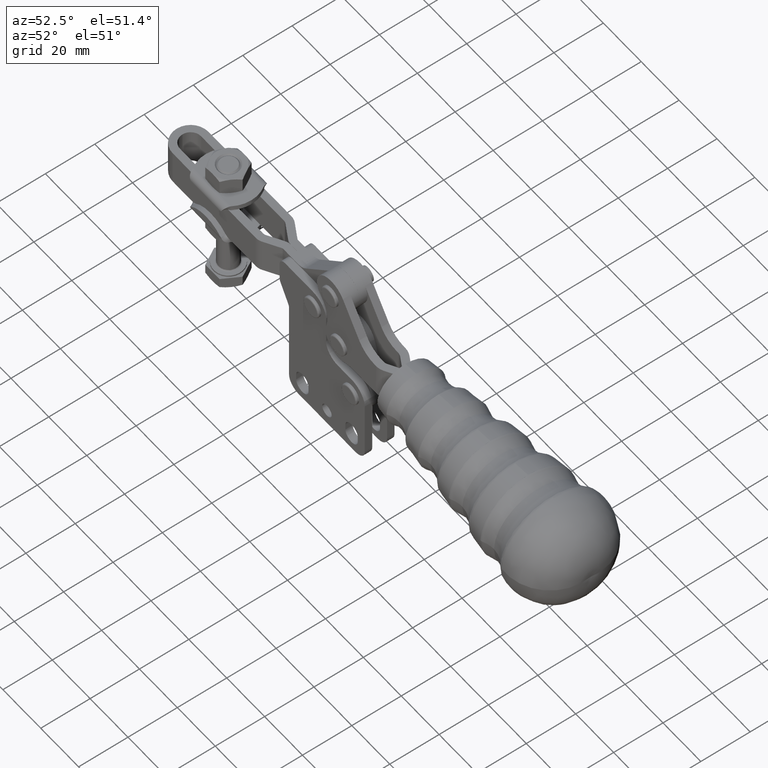
[diagram: clean part render]
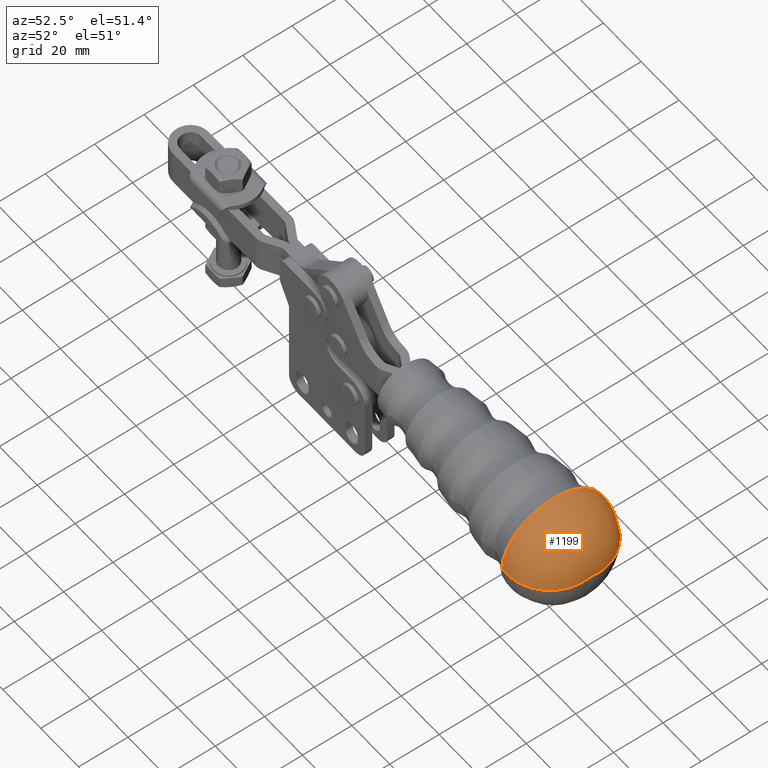
[diagram: same view with one face highlighted and labeled with its STEP entity id]
A machine part, auxiliary view. The second image highlights one B-rep face of the part: STEP entity #1199.
In plain terms, the highlighted face is a freeform B-spline surface patch.
Its self-contained STEP definition (entity closure, byte-faithful):
#1081=CARTESIAN_POINT('',(190.240720129043380,-87.116760936861027,-0.517462376750276));
#1082=VERTEX_POINT('',#1081);
#1090=CARTESIAN_POINT('',(190.481536453091730,-66.289459766818950,20.308446523600459));
#1091=VERTEX_POINT('',#1090);
#1092=CARTESIAN_POINT('',(190.240720129043380,-66.289459766818950,-0.517462376750270));
#1093=DIRECTION('',(-0.999933151699302,-1.726863E-016,0.011562531414043));
#1094=DIRECTION('',(-0.011562531414043,1.289759E-016,-0.999933151699302));
#1095=AXIS2_PLACEMENT_3D('',#1092,#1093,#1094);
#1096=CIRCLE('',#1095,20.827301170042073);
#1097=EDGE_CURVE('',#1082,#1091,#1096,.T.);
#1118=CARTESIAN_POINT('',(210.069113070897370,-66.289459766818965,-0.746744120125369));
#1119=CARTESIAN_POINT('',(211.551388598512350,-75.221416671106951,-0.763884123257769));
#1120=CARTESIAN_POINT('',(205.264285839839090,-81.736348928429862,-0.691184440257026));
#1121=CARTESIAN_POINT('',(198.977183081165830,-88.251281185752759,-0.618484757256283));
#1122=CARTESIAN_POINT('',(189.998815044758690,-87.087057172745290,-0.514665154624472));
#1123=CARTESIAN_POINT('',(210.069113070897370,-66.289459766818965,-0.746744120125383));
#1124=CARTESIAN_POINT('',(211.448112566217650,-75.221416671106951,-9.695243941404808));
#1125=CARTESIAN_POINT('',(205.085680698658730,-81.736348928429862,-16.137041003576410));
#1126=CARTESIAN_POINT('',(198.723248831099820,-88.251281185752759,-22.578838065747998));
#1127=CARTESIAN_POINT('',(189.758342171416050,-87.087057172745290,-21.310872276505620));
#1128=CARTESIAN_POINT('',(210.069113070897370,-66.289459766818950,-0.746744120125383));
#1129=CARTESIAN_POINT('',(211.448112566217650,-66.289459766818950,-9.695243941404808));
#1130=CARTESIAN_POINT('',(205.085680698658730,-66.289459766818950,-16.137041003576410));
#1131=CARTESIAN_POINT('',(198.723248831099820,-66.289459766818950,-22.578838065747995));
#1132=CARTESIAN_POINT('',(189.758342171416050,-66.289459766818950,-21.310872276505620));
#1133=CARTESIAN_POINT('',(210.069113070897370,-66.289459766818936,-0.746744120125383));
#1134=CARTESIAN_POINT('',(211.448112566217650,-57.357502862530957,-9.695243941404804));
#1135=CARTESIAN_POINT('',(205.085680698658730,-50.842570605208046,-16.137041003576403));
#1136=CARTESIAN_POINT('',(198.723248831099820,-44.327638347885141,-22.578838065747984));
#1137=CARTESIAN_POINT('',(189.758342171416050,-45.491862360892611,-21.310872276505613));
#1138=CARTESIAN_POINT('',(210.069113070897370,-66.289459766818936,-0.746744120125369));
#1139=CARTESIAN_POINT('',(211.551388598512350,-57.357502862530950,-0.763884123257764));
#1140=CARTESIAN_POINT('',(205.264285839839090,-50.842570605208039,-0.691184440257018));
#1141=CARTESIAN_POINT('',(198.977183081165830,-44.327638347885141,-0.618484757256272));
#1142=CARTESIAN_POINT('',(189.998815044758690,-45.491862360892611,-0.514665154624461));
#1143=CARTESIAN_POINT('',(210.069113070897370,-66.289459766818936,-0.746744120125355));
#1144=CARTESIAN_POINT('',(211.654664630807050,-57.357502862530957,8.167475694889273));
#1145=CARTESIAN_POINT('',(205.442890981019470,-50.842570605208046,14.754672123062367));
#1146=CARTESIAN_POINT('',(199.231117331231840,-44.327638347885141,21.341868551235446));
#1147=CARTESIAN_POINT('',(190.239287918101330,-45.491862360892611,20.281541967256686));
#1148=CARTESIAN_POINT('',(210.069113070897370,-66.289459766818950,-0.746744120125354));
#1149=CARTESIAN_POINT('',(211.654664630807050,-66.289459766818950,8.167475694889273));
#1150=CARTESIAN_POINT('',(205.442890981019450,-66.289459766818950,14.754672123062365));
#1151=CARTESIAN_POINT('',(199.231117331231840,-66.289459766818950,21.341868551235443));
#1152=CARTESIAN_POINT('',(190.239287918101330,-66.289459766818950,20.281541967256686));
#1153=CARTESIAN_POINT('',(210.069113070897370,-66.289459766818965,-0.746744120125354));
#1154=CARTESIAN_POINT('',(211.654664630807050,-75.221416671106951,8.167475694889269));
#1155=CARTESIAN_POINT('',(205.442890981019470,-81.736348928429862,14.754672123062358));
#1156=CARTESIAN_POINT('',(199.231117331231840,-88.251281185752759,21.341868551235432));
#1157=CARTESIAN_POINT('',(190.239287918101330,-87.087057172745290,20.281541967256679));
#1158=CARTESIAN_POINT('',(210.069113070897370,-66.289459766818965,-0.746744120125369));
#1159=CARTESIAN_POINT('',(211.551388598512350,-75.221416671106951,-0.763884123257769));
#1160=CARTESIAN_POINT('',(205.264285839839090,-81.736348928429862,-0.691184440257026));
#1161=CARTESIAN_POINT('',(198.977183081165830,-88.251281185752759,-0.618484757256283));
#1162=CARTESIAN_POINT('',(189.998815044758690,-87.087057172745290,-0.514665154624472));
#1170=(BOUNDED_SURFACE()B_SPLINE_SURFACE(2,2,((#1118,#1123,#1128,#1133,#1138,#1143,#1148,#1153,#1158),(#1119,#1124,#1129,#1134,#1139,#1144,#1149,#1154,#1159),(#1120,#1125,#1130,#1135,#1140,#1145,#1150,#1155,#1160),(#1121,#1126,#1131,#1136,#1141,#1146,#1151,#1156,#1161),(#1122,#1127,#1132,#1137,#1142,#1147,#1152,#1157,#1162)),.UNSPECIFIED.,.F.,.T.,.U.)B_SPLINE_SURFACE_WITH_KNOTS((3,2,3),(3,2,2,2,3),(-1.735260305660283,-0.803159231069614,0.128941843521056),(0.0,1.570796326794897,3.141592653589793,4.712388980384690,6.283185307179586),.UNSPECIFIED.)GEOMETRIC_REPRESENTATION_ITEM()RATIONAL_B_SPLINE_SURFACE(((1.0,0.707106781186548,1.0,0.707106781186548,1.0,0.707106781186548,1.0,0.707106781186548,1.0),(0.893349987592901,0.631693834199858,0.893349987592901,0.631693834199858,0.893349987592901,0.631693834199858,0.893349987592901,0.631693834199858,0.893349987592901),(1.0,0.707106781186548,1.0,0.707106781186548,1.0,0.707106781186548,1.0,0.707106781186548,1.0),(0.893349987592895,0.631693834199854,0.893349987592895,0.631693834199854,0.893349987592895,0.631693834199854,0.893349987592895,0.631693834199854,0.893349987592895),(1.0,0.707106781186548,1.0,0.707106781186548,1.0,0.707106781186548,1.0,0.707106781186548,1.0)))REPRESENTATION_ITEM('')SURFACE());
#1171=CARTESIAN_POINT('',(210.069113070897370,-66.289459766818936,-0.746744120125368));
#1172=VERTEX_POINT('',#1171);
#1173=CARTESIAN_POINT('',(192.313187489315310,-69.236483960819896,-0.541426947698839));
#1174=DIRECTION('',(0.011562531414043,0.0,0.999933151699302));
#1175=DIRECTION('',(0.0,-1.0,0.0));
#1176=AXIS2_PLACEMENT_3D('',#1173,#1174,#1175);
#1177=CIRCLE('',#1176,18.000000000000004);
#1178=EDGE_CURVE('',#1082,#1172,#1177,.T.);
#1179=ORIENTED_EDGE('',*,*,#1178,.T.);
#1180=CARTESIAN_POINT('',(190.240720129043380,-45.462158596776874,-0.517462376750265));
#1181=VERTEX_POINT('',#1180);
#1182=CARTESIAN_POINT('',(192.313187489315310,-63.342435572818012,-0.541426947698837));
#1183=DIRECTION('',(0.011562531414043,0.0,0.999933151699302));
#1184=DIRECTION('',(0.0,1.0,0.0));
#1185=AXIS2_PLACEMENT_3D('',#1182,#1183,#1184);
#1186=CIRCLE('',#1185,18.000000000000004);
#1187=EDGE_CURVE('',#1172,#1181,#1186,.T.);
#1188=ORIENTED_EDGE('',*,*,#1187,.T.);
#1189=CARTESIAN_POINT('',(190.240720129043380,-66.289459766818950,-0.517462376750270));
#1190=DIRECTION('',(-0.999933151699302,-1.726863E-016,0.011562531414043));
#1191=DIRECTION('',(-0.011562531414043,1.289759E-016,-0.999933151699302));
#1192=AXIS2_PLACEMENT_3D('',#1189,#1190,#1191);
#1193=CIRCLE('',#1192,20.827301170042073);
#1194=EDGE_CURVE('',#1091,#1181,#1193,.T.);
#1195=ORIENTED_EDGE('',*,*,#1194,.F.);
#1196=ORIENTED_EDGE('',*,*,#1097,.F.);
#1197=EDGE_LOOP('',(#1179,#1188,#1195,#1196));
#1198=FACE_OUTER_BOUND('',#1197,.T.);
#1199=ADVANCED_FACE('',(#1198),#1170,.T.);